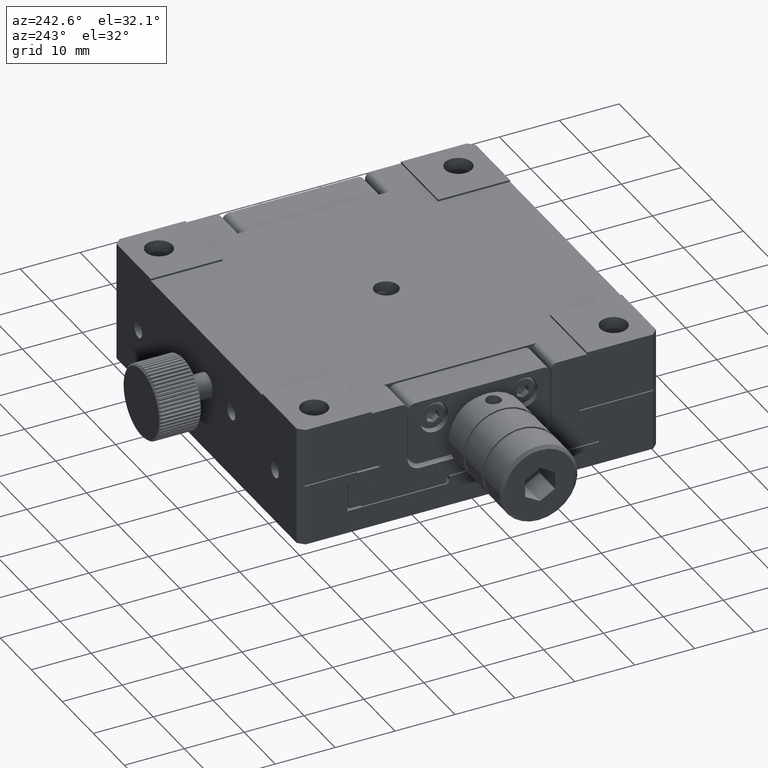
[diagram: clean part render]
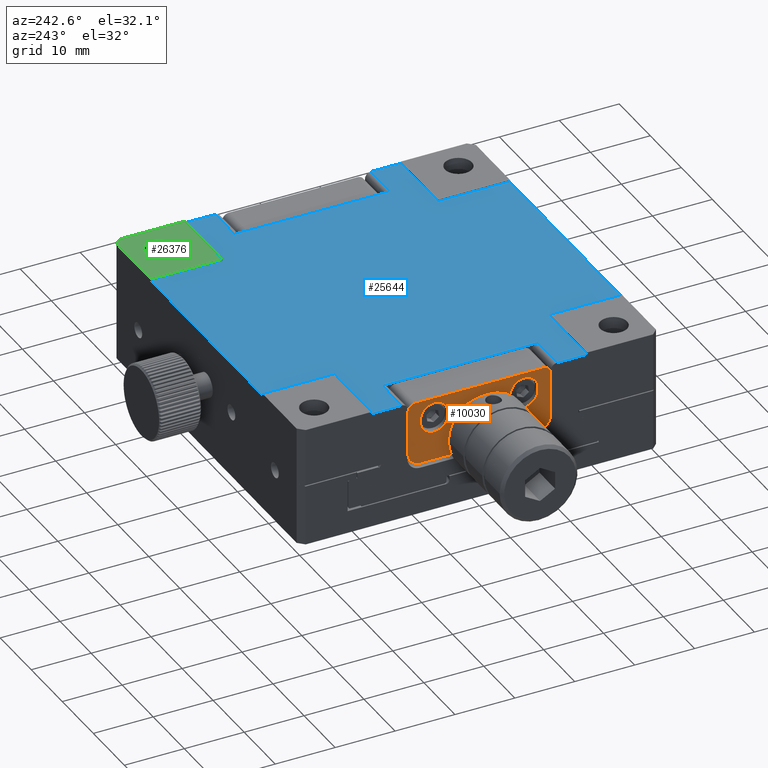
[diagram: same view with three faces highlighted in distinct colors, each labeled with its STEP entity id]
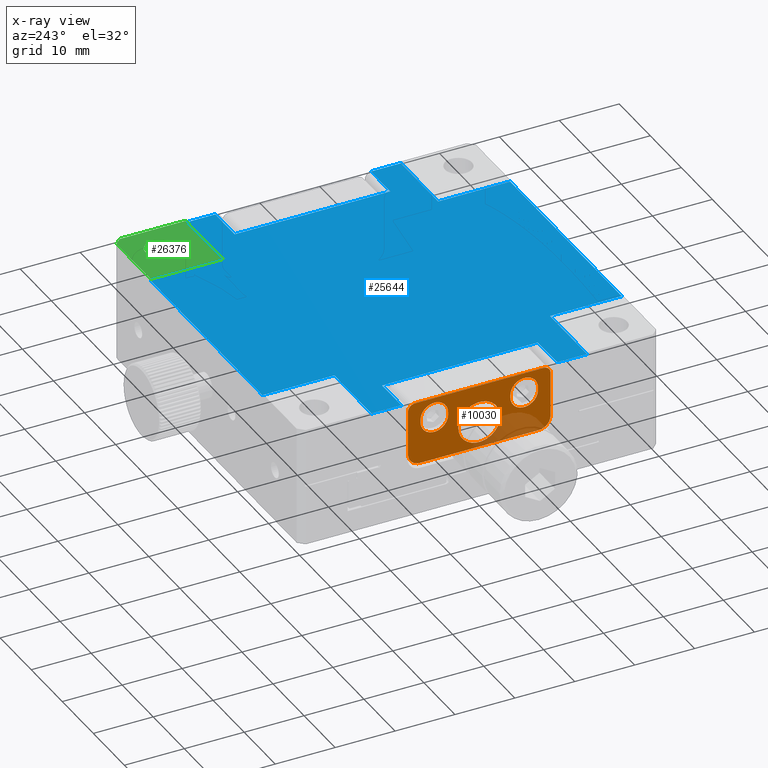
[diagram: x-ray of the same camera — body ghosted, the three highlighted faces saturated]
A machine part, auxiliary view with three faces highlighted in distinct colors.
The next image is the same camera in x-ray (body ghosted, the three faces saturated) — at least one of them is partly hidden behind the body in this view.
Their STEP definitions:

[orange] entity #10030 — the highlighted planar face has unit normal (1, -0, 0).
#185 = LINE ( 'NONE', #2818, #28652 ) ;
#213 = CARTESIAN_POINT ( 'NONE',  ( -29.94999999999999574, -5.199999999999992184, 95.74999999999998579 ) ) ;
#294 = LINE ( 'NONE', #10089, #4325 ) ;
#377 = CARTESIAN_POINT ( 'NONE',  ( -29.94999999999999574, 11.90000000000000391, 90.69999999999997442 ) ) ;
#448 = DIRECTION ( 'NONE',  ( 0.000000000000000000, -1.000000000000000000, 0.000000000000000000 ) ) ;
#463 = ORIENTED_EDGE ( 'NONE', *, *, #30219, .T. ) ;
#767 = DIRECTION ( 'NONE',  ( 1.000000000000000000, -1.500552050627951694E-16, 5.178340893154662734E-17 ) ) ;
#829 = DIRECTION ( 'NONE',  ( -1.000000000000000000, 1.500552050627951694E-16, -5.178340893154662734E-17 ) ) ;
#848 = DIRECTION ( 'NONE',  ( 0.000000000000000000, -1.817990202823682791E-15, -1.000000000000000000 ) ) ;
#865 = VERTEX_POINT ( 'NONE', #34792 ) ;
#1246 = DIRECTION ( 'NONE',  ( 0.000000000000000000, -1.000000000000000000, 8.326672684688671588E-17 ) ) ;
#1537 = VERTEX_POINT ( 'NONE', #11376 ) ;
#1668 = EDGE_LOOP ( 'NONE', ( #29568 ) ) ;
#1782 = ORIENTED_EDGE ( 'NONE', *, *, #6616, .T. ) ;
#2131 = DIRECTION ( 'NONE',  ( -1.249460577191733278E-32, -8.326672684688669123E-17, -1.000000000000000000 ) ) ;
#2334 = LINE ( 'NONE', #22333, #4439 ) ;
#2818 = CARTESIAN_POINT ( 'NONE',  ( -29.94999999999999574, 11.90000000000000568, 99.70000000000000284 ) ) ;
#2869 = CARTESIAN_POINT ( 'NONE',  ( -29.94999999999999574, 10.70000000000000817, 98.19999999999998863 ) ) ;
#3115 = CARTESIAN_POINT ( 'NONE',  ( -29.94999999999999574, -11.89999999999998970, 98.19999999999998863 ) ) ;
#3281 = EDGE_CURVE ( 'NONE', #28391, #7917, #15409, .T. ) ;
#3419 = CIRCLE ( 'NONE', #13697, 1.199999999999999734 ) ;
#4306 = CARTESIAN_POINT ( 'NONE',  ( -29.94999999999999574, 6.938893903907228378E-15, 92.99999999999998579 ) ) ;
#4325 = VECTOR ( 'NONE', #13130, 1000.000000000000000 ) ;
#4413 = CARTESIAN_POINT ( 'NONE',  ( -29.94999999999999574, 5.200000000000009059, 95.74999999999998579 ) ) ;
#4439 = VECTOR ( 'NONE', #25334, 1000.000000000000000 ) ;
#4976 = DIRECTION ( 'NONE',  ( 0.000000000000000000, -1.000000000000000000, 0.000000000000000000 ) ) ;
#4981 = EDGE_CURVE ( 'NONE', #7493, #7603, #294, .T. ) ;
#5096 = DIRECTION ( 'NONE',  ( 1.000000000000000000, -1.500552050627951694E-16, 5.178340893154662734E-17 ) ) ;
#5165 = DIRECTION ( 'NONE',  ( -1.000000000000000000, 1.500552050627951694E-16, -5.178340893154662734E-17 ) ) ;
#5274 = ORIENTED_EDGE ( 'NONE', *, *, #24233, .T. ) ;
#6613 = EDGE_CURVE ( 'NONE', #21410, #7917, #17064, .T. ) ;
#6616 = EDGE_CURVE ( 'NONE', #27488, #8894, #2334, .T. ) ;
#7063 = AXIS2_PLACEMENT_3D ( 'NONE', #2869, #14410, #18545 ) ;
#7225 = DIRECTION ( 'NONE',  ( 0.000000000000000000, -1.000000000000000000, 0.000000000000000000 ) ) ;
#7493 = VERTEX_POINT ( 'NONE', #28528 ) ;
#7603 = VERTEX_POINT ( 'NONE', #33414 ) ;
#7807 = CARTESIAN_POINT ( 'NONE',  ( -29.94999999999999574, -7.499999999999991118, 96.24999999999998579 ) ) ;
#7917 = VERTEX_POINT ( 'NONE', #27693 ) ;
#8410 = EDGE_CURVE ( 'NONE', #17891, #17891, #16567, .T. ) ;
#8894 = VERTEX_POINT ( 'NONE', #3115 ) ;
#9226 = AXIS2_PLACEMENT_3D ( 'NONE', #24608, #30266, #19145 ) ;
#9395 = CARTESIAN_POINT ( 'NONE',  ( -29.94999999999999574, 9.800000000000000711, 96.24999999999998579 ) ) ;
#9437 = EDGE_CURVE ( 'NONE', #7603, #8894, #3419, .T. ) ;
#9704 = LINE ( 'NONE', #21221, #34291 ) ;
#10030 = ADVANCED_FACE ( 'NONE', ( #14855, #26325, #15035, #29350 ), #35003, .F. ) ;
#10089 = CARTESIAN_POINT ( 'NONE',  ( -29.94999999999999574, -11.89999999999999147, 99.39999999999999147 ) ) ;
#10153 = ORIENTED_EDGE ( 'NONE', *, *, #33206, .F. ) ;
#10357 = VECTOR ( 'NONE', #11807, 1000.000000000000000 ) ;
#11024 = VECTOR ( 'NONE', #32779, 1000.000000000000000 ) ;
#11076 = VECTOR ( 'NONE', #2131, 1000.000000000000000 ) ;
#11123 = CARTESIAN_POINT ( 'NONE',  ( -29.94999999999999574, -9.899999999999991473, 90.69999999999998863 ) ) ;
#11376 = CARTESIAN_POINT ( 'NONE',  ( -29.94999999999999574, 9.900000000000003908, 88.69999999999997442 ) ) ;
#11542 = ORIENTED_EDGE ( 'NONE', *, *, #3281, .T. ) ;
#11585 = VERTEX_POINT ( 'NONE', #29816 ) ;
#11807 = DIRECTION ( 'NONE',  ( 1.249460577191733278E-32, 8.326672684688669123E-17, 1.000000000000000000 ) ) ;
#11966 = ORIENTED_EDGE ( 'NONE', *, *, #27364, .T. ) ;
#12005 = EDGE_CURVE ( 'NONE', #1537, #11585, #16157, .T. ) ;
#12732 = ORIENTED_EDGE ( 'NONE', *, *, #18993, .T. ) ;
#12909 = CARTESIAN_POINT ( 'NONE',  ( -29.94999999999999574, -7.499999999999991118, 95.74999999999998579 ) ) ;
#12919 = ORIENTED_EDGE ( 'NONE', *, *, #26936, .F. ) ;
#13056 = AXIS2_PLACEMENT_3D ( 'NONE', #11123, #5096, #25265 ) ;
#13130 = DIRECTION ( 'NONE',  ( 0.000000000000000000, -1.000000000000000000, 8.326672684688671588E-17 ) ) ;
#13314 = CARTESIAN_POINT ( 'NONE',  ( -29.94999999999999574, 11.90000000000000746, 98.19999999999998863 ) ) ;
#13663 = LINE ( 'NONE', #4413, #11076 ) ;
#13697 = AXIS2_PLACEMENT_3D ( 'NONE', #21392, #26651, #448 ) ;
#14104 = ORIENTED_EDGE ( 'NONE', *, *, #9437, .F. ) ;
#14410 = DIRECTION ( 'NONE',  ( 1.000000000000000000, -1.500552050627951694E-16, 5.178340893154662734E-17 ) ) ;
#14637 = ORIENTED_EDGE ( 'NONE', *, *, #4981, .F. ) ;
#14686 = AXIS2_PLACEMENT_3D ( 'NONE', #7807, #5165, #4976 ) ;
#14829 = EDGE_CURVE ( 'NONE', #28391, #35058, #18936, .T. ) ;
#14855 = FACE_OUTER_BOUND ( 'NONE', #26558, .T. ) ;
#15035 = FACE_BOUND ( 'NONE', #22086, .T. ) ;
#15332 = AXIS2_PLACEMENT_3D ( 'NONE', #12909, #829, #7225 ) ;
#15409 = LINE ( 'NONE', #35378, #10357 ) ;
#15757 = VERTEX_POINT ( 'NONE', #13314 ) ;
#16034 = AXIS2_PLACEMENT_3D ( 'NONE', #32067, #767, #23593 ) ;
#16157 = LINE ( 'NONE', #18425, #20623 ) ;
#16567 = CIRCLE ( 'NONE', #17783, 3.499999999999999556 ) ;
#17064 = CIRCLE ( 'NONE', #14686, 2.299999999999998046 ) ;
#17325 = EDGE_CURVE ( 'NONE', #1537, #30791, #32263, .T. ) ;
#17474 = DIRECTION ( 'NONE',  ( 1.000000000000000000, -1.500552050627951447E-16, 5.178340893154662117E-17 ) ) ;
#17783 = AXIS2_PLACEMENT_3D ( 'NONE', #4306, #21662, #35609 ) ;
#17891 = VERTEX_POINT ( 'NONE', #29570 ) ;
#18425 = CARTESIAN_POINT ( 'NONE',  ( -29.94999999999999574, -11.89999999999999147, 88.69999999999998863 ) ) ;
#18545 = DIRECTION ( 'NONE',  ( 0.000000000000000000, 1.000000000000000000, 0.000000000000000000 ) ) ;
#18864 = CIRCLE ( 'NONE', #28477, 2.299999999999996270 ) ;
#18892 = VERTEX_POINT ( 'NONE', #35881 ) ;
#18936 = CIRCLE ( 'NONE', #15332, 2.299999999999998046 ) ;
#18943 = ORIENTED_EDGE ( 'NONE', *, *, #26505, .F. ) ;
#18993 = EDGE_CURVE ( 'NONE', #15757, #30791, #185, .T. ) ;
#19077 = CIRCLE ( 'NONE', #13056, 2.000000000000000000 ) ;
#19145 = DIRECTION ( 'NONE',  ( 0.000000000000000000, -1.000000000000000000, 0.000000000000000000 ) ) ;
#19366 = DIRECTION ( 'NONE',  ( 0.000000000000000000, -1.000000000000000000, 0.000000000000000000 ) ) ;
#19716 = ORIENTED_EDGE ( 'NONE', *, *, #12005, .T. ) ;
#20107 = DIRECTION ( 'NONE',  ( 1.500552050627951447E-16, 1.000000000000000000, 0.000000000000000000 ) ) ;
#20623 = VECTOR ( 'NONE', #1246, 1000.000000000000000 ) ;
#21088 = CARTESIAN_POINT ( 'NONE',  ( -29.94999999999999574, -9.799999999999993605, 95.74999999999998579 ) ) ;
#21221 = CARTESIAN_POINT ( 'NONE',  ( -29.94999999999999574, -9.799999999999993605, 95.74999999999998579 ) ) ;
#21392 = CARTESIAN_POINT ( 'NONE',  ( -29.94999999999999574, -10.69999999999999041, 98.19999999999998863 ) ) ;
#21410 = VERTEX_POINT ( 'NONE', #25699 ) ;
#21533 = EDGE_CURVE ( 'NONE', #15757, #7493, #37180, .T. ) ;
#21655 = CARTESIAN_POINT ( 'NONE',  ( -29.94999999999999574, -11.89999999999998970, 90.69999999999998863 ) ) ;
#21662 = DIRECTION ( 'NONE',  ( 1.000000000000000000, -1.500552050627951447E-16, 5.178340893154662117E-17 ) ) ;
#22086 = EDGE_LOOP ( 'NONE', ( #35775, #11542, #24983, #5274 ) ) ;
#22333 = CARTESIAN_POINT ( 'NONE',  ( -29.94999999999999574, -11.89999999999998970, 99.70000000000000284 ) ) ;
#23593 = DIRECTION ( 'NONE',  ( 0.000000000000000000, 1.000000000000000000, 0.000000000000000000 ) ) ;
#24233 = EDGE_CURVE ( 'NONE', #21410, #35058, #9704, .T. ) ;
#24302 = ORIENTED_EDGE ( 'NONE', *, *, #17325, .F. ) ;
#24608 = CARTESIAN_POINT ( 'NONE',  ( -29.94999999999999574, 7.500000000000007105, 96.24999999999998579 ) ) ;
#24983 = ORIENTED_EDGE ( 'NONE', *, *, #6613, .F. ) ;
#25004 = CARTESIAN_POINT ( 'NONE',  ( -29.94999999999999574, 7.500000000000007105, 95.74999999999998579 ) ) ;
#25265 = DIRECTION ( 'NONE',  ( 0.000000000000000000, 1.000000000000000000, 0.000000000000000000 ) ) ;
#25334 = DIRECTION ( 'NONE',  ( 1.249460577191733278E-32, 8.326672684688669123E-17, 1.000000000000000000 ) ) ;
#25680 = ORIENTED_EDGE ( 'NONE', *, *, #21533, .F. ) ;
#25699 = CARTESIAN_POINT ( 'NONE',  ( -29.94999999999999574, -9.799999999999993605, 96.24999999999998579 ) ) ;
#26211 = DIRECTION ( 'NONE',  ( -1.249460577191733278E-32, -8.326672684688669123E-17, -1.000000000000000000 ) ) ;
#26325 = FACE_BOUND ( 'NONE', #33517, .T. ) ;
#26505 = EDGE_CURVE ( 'NONE', #18892, #35310, #18864, .T. ) ;
#26558 = EDGE_LOOP ( 'NONE', ( #14104, #14637, #25680, #12732, #24302, #19716, #10153, #1782 ) ) ;
#26651 = DIRECTION ( 'NONE',  ( 1.000000000000000000, -1.500552050627951694E-16, 5.178340893154662734E-17 ) ) ;
#26936 = EDGE_CURVE ( 'NONE', #34132, #865, #28516, .T. ) ;
#27364 = EDGE_CURVE ( 'NONE', #18892, #865, #34677, .T. ) ;
#27488 = VERTEX_POINT ( 'NONE', #21655 ) ;
#27693 = CARTESIAN_POINT ( 'NONE',  ( -29.94999999999999574, -5.199999999999992184, 96.24999999999998579 ) ) ;
#28391 = VERTEX_POINT ( 'NONE', #213 ) ;
#28477 = AXIS2_PLACEMENT_3D ( 'NONE', #25004, #33872, #19366 ) ;
#28516 = CIRCLE ( 'NONE', #9226, 2.299999999999996270 ) ;
#28528 = CARTESIAN_POINT ( 'NONE',  ( -29.94999999999999574, 10.70000000000000639, 99.39999999999999147 ) ) ;
#28652 = VECTOR ( 'NONE', #26211, 1000.000000000000000 ) ;
#29350 = FACE_BOUND ( 'NONE', #1668, .T. ) ;
#29568 = ORIENTED_EDGE ( 'NONE', *, *, #8410, .T. ) ;
#29570 = CARTESIAN_POINT ( 'NONE',  ( -29.94999999999999574, 3.500000000000006661, 92.99999999999998579 ) ) ;
#29816 = CARTESIAN_POINT ( 'NONE',  ( -29.94999999999999574, -9.899999999999991473, 88.69999999999998863 ) ) ;
#30219 = EDGE_CURVE ( 'NONE', #34132, #35310, #13663, .T. ) ;
#30266 = DIRECTION ( 'NONE',  ( -1.000000000000000000, 1.500552050627951694E-16, -5.178340893154662734E-17 ) ) ;
#30707 = AXIS2_PLACEMENT_3D ( 'NONE', #32161, #17474, #20107 ) ;
#30791 = VERTEX_POINT ( 'NONE', #377 ) ;
#32067 = CARTESIAN_POINT ( 'NONE',  ( -29.94999999999999574, 9.900000000000003908, 90.69999999999997442 ) ) ;
#32161 = CARTESIAN_POINT ( 'NONE',  ( -29.94999999999999574, -11.89999999999998970, 99.70000000000000284 ) ) ;
#32263 = CIRCLE ( 'NONE', #16034, 2.000000000000000000 ) ;
#32779 = DIRECTION ( 'NONE',  ( 1.249460577191733278E-32, 8.326672684688669123E-17, 1.000000000000000000 ) ) ;
#33206 = EDGE_CURVE ( 'NONE', #27488, #11585, #19077, .T. ) ;
#33358 = CARTESIAN_POINT ( 'NONE',  ( -29.94999999999999574, 5.200000000000009948, 95.74999999999998579 ) ) ;
#33414 = CARTESIAN_POINT ( 'NONE',  ( -29.94999999999999574, -10.69999999999999041, 99.39999999999999147 ) ) ;
#33517 = EDGE_LOOP ( 'NONE', ( #18943, #11966, #12919, #463 ) ) ;
#33872 = DIRECTION ( 'NONE',  ( -1.000000000000000000, 1.500552050627951694E-16, -5.178340893154662734E-17 ) ) ;
#34132 = VERTEX_POINT ( 'NONE', #35737 ) ;
#34291 = VECTOR ( 'NONE', #848, 1000.000000000000000 ) ;
#34677 = LINE ( 'NONE', #9395, #11024 ) ;
#34792 = CARTESIAN_POINT ( 'NONE',  ( -29.94999999999999574, 9.800000000000002487, 96.24999999999998579 ) ) ;
#35003 = PLANE ( 'NONE',  #30707 ) ;
#35058 = VERTEX_POINT ( 'NONE', #21088 ) ;
#35310 = VERTEX_POINT ( 'NONE', #33358 ) ;
#35378 = CARTESIAN_POINT ( 'NONE',  ( -29.94999999999999574, -5.199999999999991296, 96.24999999999998579 ) ) ;
#35609 = DIRECTION ( 'NONE',  ( 0.000000000000000000, 1.000000000000000000, 0.000000000000000000 ) ) ;
#35737 = CARTESIAN_POINT ( 'NONE',  ( -29.94999999999999574, 5.200000000000009948, 96.24999999999998579 ) ) ;
#35775 = ORIENTED_EDGE ( 'NONE', *, *, #14829, .F. ) ;
#35881 = CARTESIAN_POINT ( 'NONE',  ( -29.94999999999999574, 9.800000000000002487, 95.74999999999998579 ) ) ;
#37180 = CIRCLE ( 'NONE', #7063, 1.199999999999999734 ) ;

[blue] entity #25644 — the highlighted planar face has unit normal (0, 0, 1).
#289 = ORIENTED_EDGE ( 'NONE', *, *, #32894, .T. ) ;
#884 = VERTEX_POINT ( 'NONE', #17836 ) ;
#1132 = ORIENTED_EDGE ( 'NONE', *, *, #29460, .T. ) ;
#1359 = LINE ( 'NONE', #16083, #29931 ) ;
#1365 = ORIENTED_EDGE ( 'NONE', *, *, #20035, .T. ) ;
#1685 = CARTESIAN_POINT ( 'NONE',  ( -23.74999999999999289, -13.00000000000000355, 99.70000000000003126 ) ) ;
#1717 = DIRECTION ( 'NONE',  ( -1.000000000000000000, -0.000000000000000000, 0.000000000000000000 ) ) ;
#2194 = VERTEX_POINT ( 'NONE', #10790 ) ;
#2867 = CARTESIAN_POINT ( 'NONE',  ( 29.99999999999999645, 5.204170427930421283E-15, 99.70000000000003126 ) ) ;
#2946 = VECTOR ( 'NONE', #34014, 1000.000000000000000 ) ;
#2974 = AXIS2_PLACEMENT_3D ( 'NONE', #4236, #34463, #12357 ) ;
#3390 = LINE ( 'NONE', #17558, #24940 ) ;
#3449 = EDGE_CURVE ( 'NONE', #32413, #20415, #36299, .T. ) ;
#3664 = CARTESIAN_POINT ( 'NONE',  ( -30.00000000000001066, -18.00000000000001421, 99.70000000000003126 ) ) ;
#4178 = EDGE_CURVE ( 'NONE', #5449, #22726, #22094, .T. ) ;
#4236 = CARTESIAN_POINT ( 'NONE',  ( 0.000000000000000000, 0.000000000000000000, 99.70000000000003126 ) ) ;
#4362 = DIRECTION ( 'NONE',  ( -1.000000000000000000, -0.000000000000000000, 0.000000000000000000 ) ) ;
#4817 = VECTOR ( 'NONE', #22699, 1000.000000000000000 ) ;
#4996 = LINE ( 'NONE', #19350, #5191 ) ;
#5191 = VECTOR ( 'NONE', #16533, 1000.000000000000000 ) ;
#5359 = EDGE_LOOP ( 'NONE', ( #14063, #24577, #8765, #1132, #24401, #26745, #17906, #289, #16978, #6668, #34975, #32508, #32601, #12237, #21771, #26481, #1365, #17871, #36722, #10157 ) ) ;
#5449 = VERTEX_POINT ( 'NONE', #24694 ) ;
#6034 = DIRECTION ( 'NONE',  ( 1.000000000000000000, 0.000000000000000000, -0.000000000000000000 ) ) ;
#6101 = CARTESIAN_POINT ( 'NONE',  ( 29.99999999999999645, -18.00000000000000711, 99.70000000000003126 ) ) ;
#6445 = EDGE_CURVE ( 'NONE', #31555, #27910, #6885, .T. ) ;
#6650 = DIRECTION ( 'NONE',  ( -1.000000000000000000, -0.000000000000000000, 0.000000000000000000 ) ) ;
#6660 = EDGE_CURVE ( 'NONE', #32140, #26532, #28366, .T. ) ;
#6668 = ORIENTED_EDGE ( 'NONE', *, *, #33158, .T. ) ;
#6885 = LINE ( 'NONE', #30272, #11633 ) ;
#7026 = DIRECTION ( 'NONE',  ( 0.000000000000000000, 0.000000000000000000, 1.000000000000000000 ) ) ;
#7080 = CARTESIAN_POINT ( 'NONE',  ( -1.040834085586084257E-14, -30.00000000000000000, 99.70000000000003126 ) ) ;
#7115 = VECTOR ( 'NONE', #34948, 1000.000000000000000 ) ;
#7145 = LINE ( 'NONE', #18300, #19324 ) ;
#7512 = CARTESIAN_POINT ( 'NONE',  ( -18.00000000000001776, -18.00000000000001066, 99.70000000000003126 ) ) ;
#7616 = CARTESIAN_POINT ( 'NONE',  ( 30.00000000000000000, 5.204170427930421283E-15, 99.70000000000003126 ) ) ;
#7747 = DIRECTION ( 'NONE',  ( 1.000000000000000000, 0.000000000000000000, -0.000000000000000000 ) ) ;
#7826 = EDGE_CURVE ( 'NONE', #29961, #32413, #3390, .T. ) ;
#8274 = CARTESIAN_POINT ( 'NONE',  ( 23.75000000000000355, 5.204170427930421283E-15, 99.70000000000003126 ) ) ;
#8448 = VECTOR ( 'NONE', #33293, 1000.000000000000000 ) ;
#8765 = ORIENTED_EDGE ( 'NONE', *, *, #22589, .T. ) ;
#9060 = CARTESIAN_POINT ( 'NONE',  ( -30.00000000000002842, 5.204170427930421283E-15, 99.70000000000003126 ) ) ;
#9119 = EDGE_CURVE ( 'NONE', #30034, #29961, #30630, .T. ) ;
#9441 = LINE ( 'NONE', #9060, #28655 ) ;
#9850 = CARTESIAN_POINT ( 'NONE',  ( -1.040834085586084257E-14, 5.204170427930421283E-15, 99.70000000000003126 ) ) ;
#9932 = EDGE_CURVE ( 'NONE', #20415, #31555, #22927, .T. ) ;
#10097 = DIRECTION ( 'NONE',  ( 1.000000000000000000, 0.000000000000000000, -0.000000000000000000 ) ) ;
#10157 = ORIENTED_EDGE ( 'NONE', *, *, #3449, .T. ) ;
#10408 = CARTESIAN_POINT ( 'NONE',  ( 30.00000000000000711, 13.00000000000000355, 99.70000000000003126 ) ) ;
#10790 = CARTESIAN_POINT ( 'NONE',  ( -18.00000000000002842, 18.00000000000000711, 99.70000000000003126 ) ) ;
#11633 = VECTOR ( 'NONE', #10097, 1000.000000000000000 ) ;
#11740 = VERTEX_POINT ( 'NONE', #20430 ) ;
#12237 = ORIENTED_EDGE ( 'NONE', *, *, #23054, .T. ) ;
#12259 = DIRECTION ( 'NONE',  ( 0.000000000000000000, -1.000000000000000000, -0.000000000000000000 ) ) ;
#12357 = DIRECTION ( 'NONE',  ( 1.000000000000000000, 0.000000000000000000, 0.000000000000000000 ) ) ;
#12572 = DIRECTION ( 'NONE',  ( 0.000000000000000000, -1.000000000000000000, -0.000000000000000000 ) ) ;
#12723 = VERTEX_POINT ( 'NONE', #22159 ) ;
#12778 = VERTEX_POINT ( 'NONE', #33106 ) ;
#12882 = FACE_OUTER_BOUND ( 'NONE', #5359, .T. ) ;
#13424 = VERTEX_POINT ( 'NONE', #32353 ) ;
#13574 = DIRECTION ( 'NONE',  ( 0.000000000000000000, -1.000000000000000000, -0.000000000000000000 ) ) ;
#13680 = LINE ( 'NONE', #19872, #2946 ) ;
#14063 = ORIENTED_EDGE ( 'NONE', *, *, #9932, .T. ) ;
#14340 = EDGE_CURVE ( 'NONE', #12723, #32140, #32552, .T. ) ;
#14836 = CARTESIAN_POINT ( 'NONE',  ( 29.99999999999999645, 18.00000000000000355, 99.70000000000003126 ) ) ;
#14893 = CARTESIAN_POINT ( 'NONE',  ( -18.00000000000001776, -29.99999999999998934, 99.70000000000003126 ) ) ;
#15349 = DIRECTION ( 'NONE',  ( 1.000000000000000000, 0.000000000000000000, -0.000000000000000000 ) ) ;
#16040 = LINE ( 'NONE', #25220, #19166 ) ;
#16083 = CARTESIAN_POINT ( 'NONE',  ( -1.040834085586084257E-14, 30.00000000000000000, 99.70000000000003126 ) ) ;
#16533 = DIRECTION ( 'NONE',  ( 0.000000000000000000, -1.000000000000000000, -0.000000000000000000 ) ) ;
#16674 = VERTEX_POINT ( 'NONE', #33474 ) ;
#16852 = CARTESIAN_POINT ( 'NONE',  ( 23.75000000000000355, -13.00000000000000355, 99.70000000000003126 ) ) ;
#16935 = LINE ( 'NONE', #17126, #18488 ) ;
#16978 = ORIENTED_EDGE ( 'NONE', *, *, #23809, .T. ) ;
#17126 = CARTESIAN_POINT ( 'NONE',  ( -1.040834085586084257E-14, 18.00000000000000355, 99.70000000000003126 ) ) ;
#17414 = EDGE_CURVE ( 'NONE', #13424, #12778, #9441, .T. ) ;
#17431 = CARTESIAN_POINT ( 'NONE',  ( -1.040834085586084257E-14, -13.00000000000000355, 99.70000000000003126 ) ) ;
#17558 = CARTESIAN_POINT ( 'NONE',  ( -18.00000000000001776, 5.204170427930421283E-15, 99.70000000000003126 ) ) ;
#17805 = LINE ( 'NONE', #2867, #7115 ) ;
#17836 = CARTESIAN_POINT ( 'NONE',  ( 17.99999999999998934, 30.00000000000000355, 99.70000000000003126 ) ) ;
#17871 = ORIENTED_EDGE ( 'NONE', *, *, #9119, .T. ) ;
#17906 = ORIENTED_EDGE ( 'NONE', *, *, #35910, .T. ) ;
#18291 = VECTOR ( 'NONE', #6650, 1000.000000000000000 ) ;
#18300 = CARTESIAN_POINT ( 'NONE',  ( -1.040834085586084257E-14, 18.00000000000001066, 99.70000000000003126 ) ) ;
#18340 = VERTEX_POINT ( 'NONE', #16852 ) ;
#18488 = VECTOR ( 'NONE', #28998, 1000.000000000000000 ) ;
#18492 = CARTESIAN_POINT ( 'NONE',  ( 17.99999999999998934, 18.00000000000000355, 99.70000000000003126 ) ) ;
#18521 = ORIENTED_EDGE ( 'NONE', *, *, #24215, .T. ) ;
#19040 = CARTESIAN_POINT ( 'NONE',  ( 30.00000000000000000, -13.00000000000000355, 99.70000000000003126 ) ) ;
#19166 = VECTOR ( 'NONE', #13574, 1000.000000000000000 ) ;
#19324 = VECTOR ( 'NONE', #20936, 1000.000000000000000 ) ;
#19349 = VECTOR ( 'NONE', #7747, 1000.000000000000000 ) ;
#19350 = CARTESIAN_POINT ( 'NONE',  ( -30.00000000000000000, 5.204170427930421283E-15, 99.70000000000003126 ) ) ;
#19872 = CARTESIAN_POINT ( 'NONE',  ( 17.99999999999998934, 5.204170427930421283E-15, 99.70000000000003126 ) ) ;
#20035 = EDGE_CURVE ( 'NONE', #26532, #30034, #4996, .T. ) ;
#20167 = LINE ( 'NONE', #8274, #32832 ) ;
#20171 = VERTEX_POINT ( 'NONE', #14836 ) ;
#20415 = VERTEX_POINT ( 'NONE', #22310 ) ;
#20430 = CARTESIAN_POINT ( 'NONE',  ( 1.999999999999993117, 0.000000000000000000, 99.70000000000003126 ) ) ;
#20936 = DIRECTION ( 'NONE',  ( -1.000000000000000000, -0.000000000000000000, 0.000000000000000000 ) ) ;
#20958 = DIRECTION ( 'NONE',  ( 0.000000000000000000, -1.000000000000000000, -0.000000000000000000 ) ) ;
#21374 = PLANE ( 'NONE',  #27252 ) ;
#21771 = ORIENTED_EDGE ( 'NONE', *, *, #14340, .T. ) ;
#21970 = DIRECTION ( 'NONE',  ( 1.000000000000000000, 0.000000000000000000, -0.000000000000000000 ) ) ;
#22094 = LINE ( 'NONE', #25269, #19349 ) ;
#22159 = CARTESIAN_POINT ( 'NONE',  ( -23.74999999999999289, 13.00000000000000355, 99.70000000000003126 ) ) ;
#22260 = CIRCLE ( 'NONE', #2974, 1.999999999999993117 ) ;
#22294 = VECTOR ( 'NONE', #31971, 1000.000000000000000 ) ;
#22310 = CARTESIAN_POINT ( 'NONE',  ( 17.99999999999999645, -29.99999999999999289, 99.70000000000003126 ) ) ;
#22589 = EDGE_CURVE ( 'NONE', #27910, #35397, #17805, .T. ) ;
#22699 = DIRECTION ( 'NONE',  ( -0.000000000000000000, 1.000000000000000000, 0.000000000000000000 ) ) ;
#22726 = VERTEX_POINT ( 'NONE', #10408 ) ;
#22927 = LINE ( 'NONE', #34629, #22294 ) ;
#23054 = EDGE_CURVE ( 'NONE', #12778, #12723, #34711, .T. ) ;
#23809 = EDGE_CURVE ( 'NONE', #33498, #884, #13680, .T. ) ;
#24215 = EDGE_CURVE ( 'NONE', #11740, #11740, #22260, .T. ) ;
#24257 = CARTESIAN_POINT ( 'NONE',  ( -23.74999999999999289, 5.204170427930421283E-15, 99.70000000000003126 ) ) ;
#24401 = ORIENTED_EDGE ( 'NONE', *, *, #28941, .T. ) ;
#24577 = ORIENTED_EDGE ( 'NONE', *, *, #6445, .T. ) ;
#24694 = CARTESIAN_POINT ( 'NONE',  ( 23.75000000000000355, 13.00000000000000355, 99.70000000000003126 ) ) ;
#24732 = FACE_BOUND ( 'NONE', #26250, .T. ) ;
#24788 = CARTESIAN_POINT ( 'NONE',  ( -1.040834085586084257E-14, -18.00000000000001421, 99.70000000000003126 ) ) ;
#24940 = VECTOR ( 'NONE', #12259, 1000.000000000000000 ) ;
#25220 = CARTESIAN_POINT ( 'NONE',  ( -18.00000000000002842, 5.204170427930421283E-15, 99.70000000000003126 ) ) ;
#25269 = CARTESIAN_POINT ( 'NONE',  ( -1.040834085586084257E-14, 13.00000000000000355, 99.70000000000003126 ) ) ;
#25644 = ADVANCED_FACE ( 'NONE', ( #12882, #24732 ), #21374, .T. ) ;
#26250 = EDGE_LOOP ( 'NONE', ( #18521 ) ) ;
#26481 = ORIENTED_EDGE ( 'NONE', *, *, #6660, .T. ) ;
#26532 = VERTEX_POINT ( 'NONE', #31039 ) ;
#26737 = VECTOR ( 'NONE', #4362, 1000.000000000000000 ) ;
#26745 = ORIENTED_EDGE ( 'NONE', *, *, #4178, .T. ) ;
#27252 = AXIS2_PLACEMENT_3D ( 'NONE', #9850, #7026, #15349 ) ;
#27910 = VERTEX_POINT ( 'NONE', #6101 ) ;
#28366 = LINE ( 'NONE', #17431, #18291 ) ;
#28655 = VECTOR ( 'NONE', #20958, 1000.000000000000000 ) ;
#28837 = VECTOR ( 'NONE', #6034, 1000.000000000000000 ) ;
#28941 = EDGE_CURVE ( 'NONE', #18340, #5449, #20167, .T. ) ;
#28998 = DIRECTION ( 'NONE',  ( -1.000000000000000000, -0.000000000000000000, 0.000000000000000000 ) ) ;
#29460 = EDGE_CURVE ( 'NONE', #35397, #18340, #33033, .T. ) ;
#29931 = VECTOR ( 'NONE', #1717, 1000.000000000000000 ) ;
#29961 = VERTEX_POINT ( 'NONE', #7512 ) ;
#30034 = VERTEX_POINT ( 'NONE', #3664 ) ;
#30272 = CARTESIAN_POINT ( 'NONE',  ( -1.040834085586084257E-14, -18.00000000000000355, 99.70000000000003126 ) ) ;
#30630 = LINE ( 'NONE', #24788, #35854 ) ;
#31039 = CARTESIAN_POINT ( 'NONE',  ( -30.00000000000000355, -13.00000000000000355, 99.70000000000003126 ) ) ;
#31555 = VERTEX_POINT ( 'NONE', #32912 ) ;
#31655 = DIRECTION ( 'NONE',  ( -0.000000000000000000, 1.000000000000000000, 0.000000000000000000 ) ) ;
#31868 = CARTESIAN_POINT ( 'NONE',  ( -1.040834085586084257E-14, 13.00000000000000355, 99.70000000000003126 ) ) ;
#31971 = DIRECTION ( 'NONE',  ( -0.000000000000000000, 1.000000000000000000, 0.000000000000000000 ) ) ;
#32140 = VERTEX_POINT ( 'NONE', #1685 ) ;
#32353 = CARTESIAN_POINT ( 'NONE',  ( -30.00000000000001776, 18.00000000000000711, 99.70000000000003126 ) ) ;
#32413 = VERTEX_POINT ( 'NONE', #14893 ) ;
#32508 = ORIENTED_EDGE ( 'NONE', *, *, #37004, .T. ) ;
#32552 = LINE ( 'NONE', #24257, #34524 ) ;
#32601 = ORIENTED_EDGE ( 'NONE', *, *, #17414, .T. ) ;
#32832 = VECTOR ( 'NONE', #31655, 1000.000000000000000 ) ;
#32894 = EDGE_CURVE ( 'NONE', #20171, #33498, #16935, .T. ) ;
#32912 = CARTESIAN_POINT ( 'NONE',  ( 18.00000000000000000, -18.00000000000000355, 99.70000000000003126 ) ) ;
#33033 = LINE ( 'NONE', #35672, #26737 ) ;
#33106 = CARTESIAN_POINT ( 'NONE',  ( -30.00000000000001421, 13.00000000000000355, 99.70000000000003126 ) ) ;
#33158 = EDGE_CURVE ( 'NONE', #884, #16674, #1359, .T. ) ;
#33293 = DIRECTION ( 'NONE',  ( 1.000000000000000000, 0.000000000000000000, -0.000000000000000000 ) ) ;
#33464 = LINE ( 'NONE', #7616, #4817 ) ;
#33474 = CARTESIAN_POINT ( 'NONE',  ( -18.00000000000002842, 30.00000000000000000, 99.70000000000003126 ) ) ;
#33498 = VERTEX_POINT ( 'NONE', #18492 ) ;
#33607 = EDGE_CURVE ( 'NONE', #16674, #2194, #16040, .T. ) ;
#34014 = DIRECTION ( 'NONE',  ( -0.000000000000000000, 1.000000000000000000, 0.000000000000000000 ) ) ;
#34463 = DIRECTION ( 'NONE',  ( -0.000000000000000000, -0.000000000000000000, -1.000000000000000000 ) ) ;
#34524 = VECTOR ( 'NONE', #12572, 1000.000000000000000 ) ;
#34629 = CARTESIAN_POINT ( 'NONE',  ( 17.99999999999999645, 5.204170427930421283E-15, 99.70000000000003126 ) ) ;
#34711 = LINE ( 'NONE', #31868, #28837 ) ;
#34948 = DIRECTION ( 'NONE',  ( -0.000000000000000000, 1.000000000000000000, 0.000000000000000000 ) ) ;
#34975 = ORIENTED_EDGE ( 'NONE', *, *, #33607, .T. ) ;
#35397 = VERTEX_POINT ( 'NONE', #19040 ) ;
#35672 = CARTESIAN_POINT ( 'NONE',  ( -1.040834085586084257E-14, -13.00000000000000355, 99.70000000000003126 ) ) ;
#35854 = VECTOR ( 'NONE', #21970, 1000.000000000000000 ) ;
#35910 = EDGE_CURVE ( 'NONE', #22726, #20171, #33464, .T. ) ;
#36299 = LINE ( 'NONE', #7080, #8448 ) ;
#36722 = ORIENTED_EDGE ( 'NONE', *, *, #7826, .T. ) ;
#37004 = EDGE_CURVE ( 'NONE', #2194, #13424, #7145, .T. ) ;

[green] entity #26376 — the highlighted planar face has unit normal (0, 0, 1).
#272 = CARTESIAN_POINT ( 'NONE',  ( 29.99999999999998934, 18.00000000000000355, 100.0000000000000142 ) ) ;
#706 = DIRECTION ( 'NONE',  ( -1.000000000000000000, 2.891205793294678326E-16, -0.000000000000000000 ) ) ;
#1460 = DIRECTION ( 'NONE',  ( 1.000000000000000000, 0.000000000000000000, -0.000000000000000000 ) ) ;
#1802 = VERTEX_POINT ( 'NONE', #272 ) ;
#2129 = AXIS2_PLACEMENT_3D ( 'NONE', #30268, #4068, #13135 ) ;
#2379 = VERTEX_POINT ( 'NONE', #34352 ) ;
#3186 = VECTOR ( 'NONE', #35001, 1000.000000000000114 ) ;
#3329 = ORIENTED_EDGE ( 'NONE', *, *, #16568, .T. ) ;
#4068 = DIRECTION ( 'NONE',  ( -0.000000000000000000, -0.000000000000000000, -1.000000000000000000 ) ) ;
#5727 = VERTEX_POINT ( 'NONE', #21285 ) ;
#5973 = EDGE_CURVE ( 'NONE', #1802, #5727, #10136, .T. ) ;
#7116 = PLANE ( 'NONE',  #29088 ) ;
#8966 = LINE ( 'NONE', #31969, #3186 ) ;
#9528 = CARTESIAN_POINT ( 'NONE',  ( 28.99999999999997158, 30.00000000000001421, 99.99999999999998579 ) ) ;
#9564 = FACE_BOUND ( 'NONE', #27213, .T. ) ;
#10136 = LINE ( 'NONE', #27298, #29097 ) ;
#10247 = VECTOR ( 'NONE', #706, 1000.000000000000000 ) ;
#10441 = ORIENTED_EDGE ( 'NONE', *, *, #35714, .F. ) ;
#10907 = VERTEX_POINT ( 'NONE', #34387 ) ;
#11908 = DIRECTION ( 'NONE',  ( 1.000000000000000000, 0.000000000000000000, -0.000000000000000000 ) ) ;
#12500 = LINE ( 'NONE', #23998, #15843 ) ;
#13101 = ORIENTED_EDGE ( 'NONE', *, *, #5973, .T. ) ;
#13135 = DIRECTION ( 'NONE',  ( -1.000000000000000000, 0.000000000000000000, 0.000000000000000000 ) ) ;
#13465 = EDGE_CURVE ( 'NONE', #15511, #5727, #8966, .T. ) ;
#15511 = VERTEX_POINT ( 'NONE', #9528 ) ;
#15843 = VECTOR ( 'NONE', #35499, 1000.000000000000000 ) ;
#16568 = EDGE_CURVE ( 'NONE', #22134, #22134, #22594, .T. ) ;
#17165 = VECTOR ( 'NONE', #11908, 1000.000000000000000 ) ;
#20710 = LINE ( 'NONE', #26730, #10247 ) ;
#21061 = ORIENTED_EDGE ( 'NONE', *, *, #13465, .F. ) ;
#21085 = DIRECTION ( 'NONE',  ( 0.000000000000000000, 0.000000000000000000, 1.000000000000000000 ) ) ;
#21285 = CARTESIAN_POINT ( 'NONE',  ( 30.00000000000000000, 28.99999999999998579, 100.0000000000000142 ) ) ;
#21645 = FACE_OUTER_BOUND ( 'NONE', #30413, .T. ) ;
#21652 = DIRECTION ( 'NONE',  ( 0.000000000000000000, 1.000000000000000000, -0.000000000000000000 ) ) ;
#22134 = VERTEX_POINT ( 'NONE', #25317 ) ;
#22594 = CIRCLE ( 'NONE', #2129, 2.249999999999998668 ) ;
#23998 = CARTESIAN_POINT ( 'NONE',  ( 17.99999999999998934, 30.00000000000000000, 100.0000000000000000 ) ) ;
#25317 = CARTESIAN_POINT ( 'NONE',  ( 22.74999999999992184, 25.00000000000018474, 100.0000000000000000 ) ) ;
#25813 = EDGE_CURVE ( 'NONE', #10907, #2379, #12500, .T. ) ;
#26376 = ADVANCED_FACE ( 'NONE', ( #21645, #9564 ), #7116, .T. ) ;
#26542 = CARTESIAN_POINT ( 'NONE',  ( -30.00000000000000000, -29.99999999999998934, 100.0000000000000000 ) ) ;
#26730 = CARTESIAN_POINT ( 'NONE',  ( 29.99999999999998934, 18.00000000000000355, 100.0000000000000000 ) ) ;
#26981 = ORIENTED_EDGE ( 'NONE', *, *, #25813, .F. ) ;
#27213 = EDGE_LOOP ( 'NONE', ( #3329 ) ) ;
#27298 = CARTESIAN_POINT ( 'NONE',  ( 30.00000000000000000, -29.99999999999998934, 100.0000000000000000 ) ) ;
#28666 = EDGE_CURVE ( 'NONE', #2379, #15511, #34921, .T. ) ;
#29088 = AXIS2_PLACEMENT_3D ( 'NONE', #26542, #21085, #1460 ) ;
#29097 = VECTOR ( 'NONE', #21652, 1000.000000000000000 ) ;
#30012 = CARTESIAN_POINT ( 'NONE',  ( 0.000000000000000000, 30.00000000000001421, 99.99999999999998579 ) ) ;
#30268 = CARTESIAN_POINT ( 'NONE',  ( 24.99999999999992184, 25.00000000000018474, 100.0000000000000000 ) ) ;
#30413 = EDGE_LOOP ( 'NONE', ( #26981, #10441, #13101, #21061, #36646 ) ) ;
#31969 = CARTESIAN_POINT ( 'NONE',  ( 30.00000000000000000, 28.99999999999998579, 100.0000000000000000 ) ) ;
#34352 = CARTESIAN_POINT ( 'NONE',  ( 17.99999999999998934, 30.00000000000001421, 99.99999999999998579 ) ) ;
#34387 = CARTESIAN_POINT ( 'NONE',  ( 17.99999999999998934, 18.00000000000000711, 100.0000000000000142 ) ) ;
#34921 = LINE ( 'NONE', #30012, #17165 ) ;
#35001 = DIRECTION ( 'NONE',  ( 0.7071067811865474617, -0.7071067811865474617, -0.000000000000000000 ) ) ;
#35499 = DIRECTION ( 'NONE',  ( 0.000000000000000000, 1.000000000000000000, -0.000000000000000000 ) ) ;
#35714 = EDGE_CURVE ( 'NONE', #1802, #10907, #20710, .T. ) ;
#36646 = ORIENTED_EDGE ( 'NONE', *, *, #28666, .F. ) ;